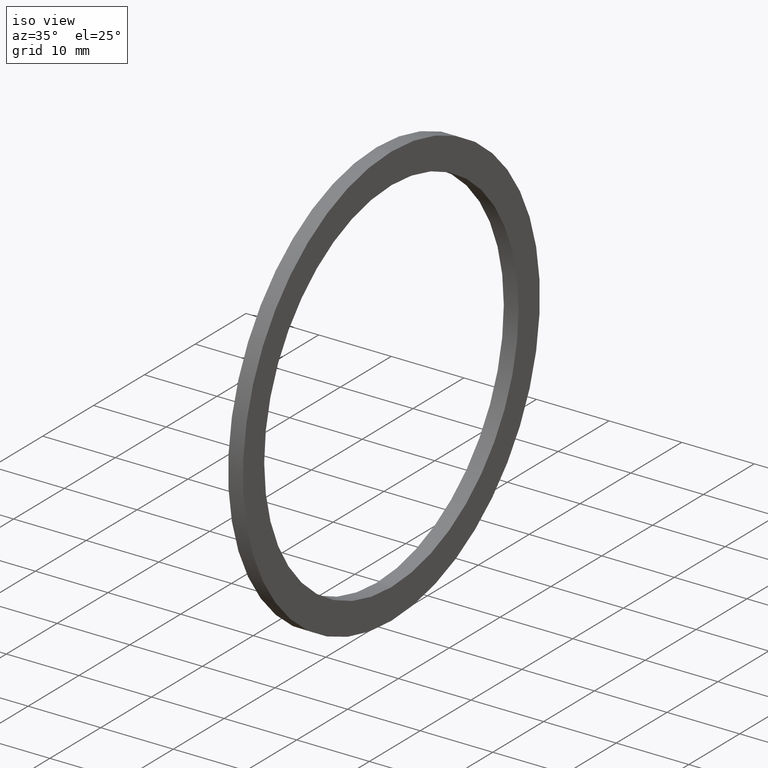
[diagram: clean part render]
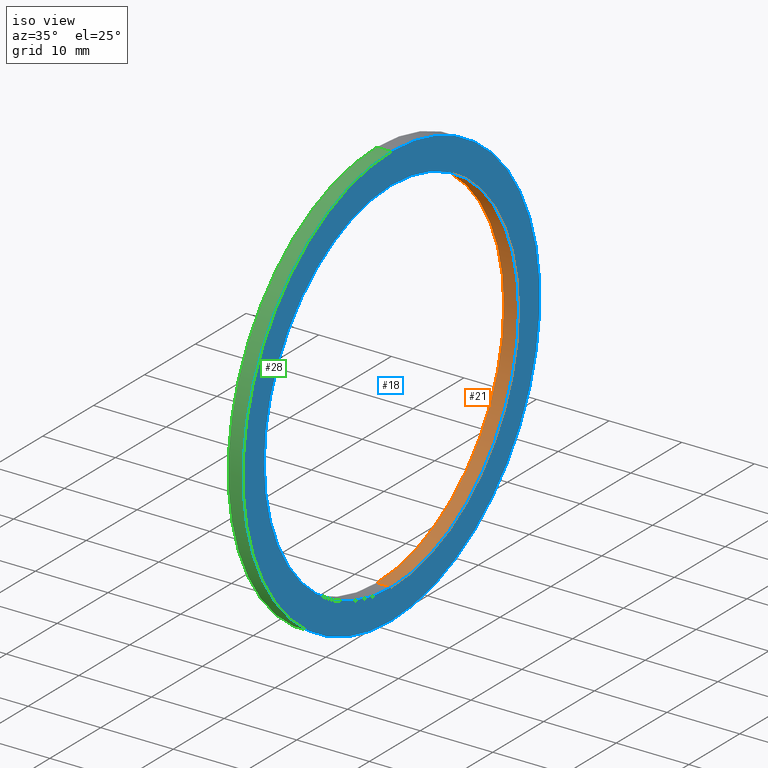
[diagram: same view with three faces highlighted in distinct colors, each labeled with its STEP entity id]
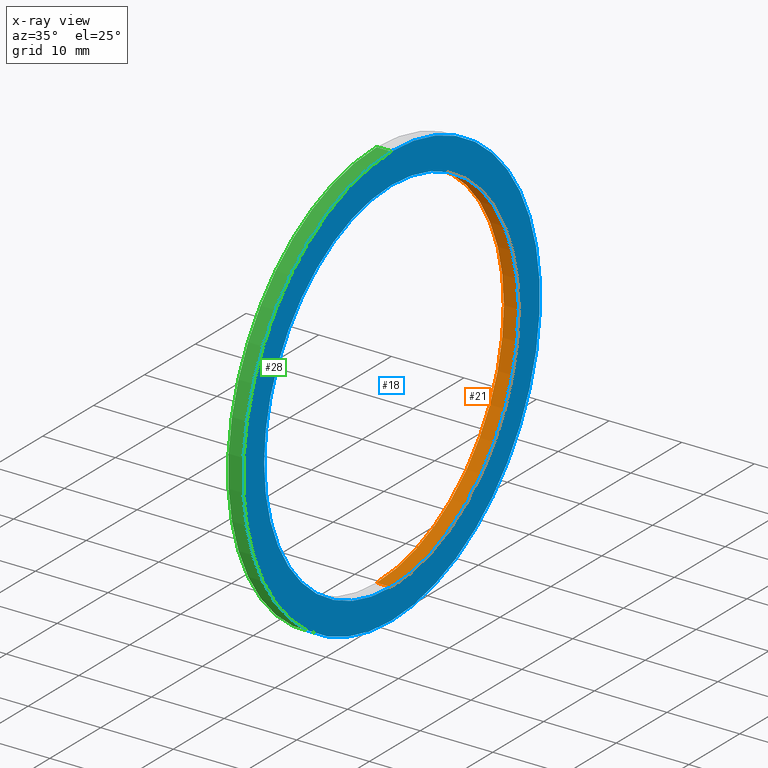
[diagram: x-ray of the same camera — body ghosted, the three highlighted faces saturated]
A machine part, iso view with three faces highlighted in distinct colors.
The next image is the same camera in x-ray (body ghosted, the three faces saturated) — at least one of them is partly hidden behind the body in this view.
Their STEP definitions:

[orange] entity #21 — the highlighted cylindrical surface (partial cylindrical patch) has radius 25.019 mm, axis along (-1, 0, 0).
#4 = VERTEX_POINT ( 'NONE', #60 ) ;
#5 = ORIENTED_EDGE ( 'NONE', *, *, #80, .T. ) ;
#6 = ORIENTED_EDGE ( 'NONE', *, *, #10, .T. ) ;
#10 = EDGE_CURVE ( 'NONE', #17, #47, #104, .T. ) ;
#13 = EDGE_CURVE ( 'NONE', #44, #4, #100, .T. ) ;
#17 = VERTEX_POINT ( 'NONE', #96 ) ;
#21 = ADVANCED_FACE ( 'NONE', ( #92 ), #86, .F. ) ;
#22 = EDGE_LOOP ( 'NONE', ( #32, #52, #5, #6 ) ) ;
#32 = ORIENTED_EDGE ( 'NONE', *, *, #46, .F. ) ;
#44 = VERTEX_POINT ( 'NONE', #144 ) ;
#46 = EDGE_CURVE ( 'NONE', #4, #47, #113, .T. ) ;
#47 = VERTEX_POINT ( 'NONE', #109 ) ;
#52 = ORIENTED_EDGE ( 'NONE', *, *, #13, .F. ) ;
#60 = CARTESIAN_POINT ( 'NONE',  ( 0.07999999999999996000, 1.206277097160143100E-016, -0.9849999999999999900 ) ) ;
#79 = CARTESIAN_POINT ( 'NONE',  ( 0.0000000000000000000, 0.0000000000000000000, 0.0000000000000000000 ) ) ;
#80 = EDGE_CURVE ( 'NONE', #44, #17, #218, .T. ) ;
#83 = DIRECTION ( 'NONE',  ( 0.0000000000000000000, 0.0000000000000000000, 1.000000000000000000 ) ) ;
#84 = DIRECTION ( 'NONE',  ( -1.000000000000000000, 0.0000000000000000000, 0.0000000000000000000 ) ) ;
#85 = AXIS2_PLACEMENT_3D ( 'NONE', #87, #84, #83 ) ;
#86 = CYLINDRICAL_SURFACE ( 'NONE', #85, 0.9849999999999999900 ) ;
#87 = CARTESIAN_POINT ( 'NONE',  ( -1.721125226614714300, 0.0000000000000000000, 0.0000000000000000000 ) ) ;
#92 = FACE_OUTER_BOUND ( 'NONE', #22, .T. ) ;
#96 = CARTESIAN_POINT ( 'NONE',  ( 0.0000000000000000000, 0.0000000000000000000, 0.9849999999999999900 ) ) ;
#97 = DIRECTION ( 'NONE',  ( 0.0000000000000000000, 0.0000000000000000000, 1.000000000000000000 ) ) ;
#98 = DIRECTION ( 'NONE',  ( -1.000000000000000000, 0.0000000000000000000, 0.0000000000000000000 ) ) ;
#99 = AXIS2_PLACEMENT_3D ( 'NONE', #105, #98, #97 ) ;
#100 = CIRCLE ( 'NONE', #99, 0.9849999999999999900 ) ;
#101 = DIRECTION ( 'NONE',  ( 0.0000000000000000000, 0.0000000000000000000, 1.000000000000000000 ) ) ;
#102 = DIRECTION ( 'NONE',  ( -1.000000000000000000, 0.0000000000000000000, 0.0000000000000000000 ) ) ;
#103 = AXIS2_PLACEMENT_3D ( 'NONE', #79, #102, #101 ) ;
#104 = CIRCLE ( 'NONE', #103, 0.9849999999999999900 ) ;
#105 = CARTESIAN_POINT ( 'NONE',  ( 0.07999999999999996000, 0.0000000000000000000, 0.0000000000000000000 ) ) ;
#109 = CARTESIAN_POINT ( 'NONE',  ( 0.0000000000000000000, 1.206277097160143100E-016, -0.9849999999999999900 ) ) ;
#110 = DIRECTION ( 'NONE',  ( -1.000000000000000000, 0.0000000000000000000, 0.0000000000000000000 ) ) ;
#111 = VECTOR ( 'NONE', #110, 39.37007874015748100 ) ;
#112 = CARTESIAN_POINT ( 'NONE',  ( -1.721125226614714300, 1.206277097160143100E-016, -0.9849999999999999900 ) ) ;
#113 = LINE ( 'NONE', #112, #111 ) ;
#144 = CARTESIAN_POINT ( 'NONE',  ( 0.07999999999999996000, 0.0000000000000000000, 0.9849999999999999900 ) ) ;
#211 = DIRECTION ( 'NONE',  ( -1.000000000000000000, 0.0000000000000000000, 0.0000000000000000000 ) ) ;
#212 = VECTOR ( 'NONE', #211, 39.37007874015748100 ) ;
#213 = CARTESIAN_POINT ( 'NONE',  ( -1.721125226614714300, 0.0000000000000000000, 0.9849999999999999900 ) ) ;
#218 = LINE ( 'NONE', #213, #212 ) ;

[blue] entity #18 — the highlighted planar face has unit normal (1, 0, 0).
#1 = EDGE_CURVE ( 'NONE', #37, #36, #59, .T. ) ;
#4 = VERTEX_POINT ( 'NONE', #60 ) ;
#13 = EDGE_CURVE ( 'NONE', #44, #4, #100, .T. ) ;
#14 = ORIENTED_EDGE ( 'NONE', *, *, #48, .T. ) ;
#15 = EDGE_LOOP ( 'NONE', ( #19, #20 ) ) ;
#18 = ADVANCED_FACE ( 'NONE', ( #95, #94 ), #93, .T. ) ;
#19 = ORIENTED_EDGE ( 'NONE', *, *, #35, .F. ) ;
#20 = ORIENTED_EDGE ( 'NONE', *, *, #1, .F. ) ;
#35 = EDGE_CURVE ( 'NONE', #36, #37, #190, .T. ) ;
#36 = VERTEX_POINT ( 'NONE', #227 ) ;
#37 = VERTEX_POINT ( 'NONE', #226 ) ;
#44 = VERTEX_POINT ( 'NONE', #144 ) ;
#48 = EDGE_CURVE ( 'NONE', #4, #44, #180, .T. ) ;
#49 = EDGE_LOOP ( 'NONE', ( #50, #14 ) ) ;
#50 = ORIENTED_EDGE ( 'NONE', *, *, #13, .T. ) ;
#57 = AXIS2_PLACEMENT_3D ( 'NONE', #62, #82, #81 ) ;
#59 = CIRCLE ( 'NONE', #57, 1.149999999999999900 ) ;
#60 = CARTESIAN_POINT ( 'NONE',  ( 0.07999999999999996000, 1.206277097160143100E-016, -0.9849999999999999900 ) ) ;
#62 = CARTESIAN_POINT ( 'NONE',  ( 0.07999999999999996000, 0.0000000000000000000, 0.0000000000000000000 ) ) ;
#81 = DIRECTION ( 'NONE',  ( 0.0000000000000000000, 0.0000000000000000000, 1.000000000000000000 ) ) ;
#82 = DIRECTION ( 'NONE',  ( -1.000000000000000000, 0.0000000000000000000, 0.0000000000000000000 ) ) ;
#88 = DIRECTION ( 'NONE',  ( 0.0000000000000000000, 0.0000000000000000000, -1.000000000000000000 ) ) ;
#89 = DIRECTION ( 'NONE',  ( 1.000000000000000000, 0.0000000000000000000, 0.0000000000000000000 ) ) ;
#90 = CARTESIAN_POINT ( 'NONE',  ( 0.08000000000000001600, -0.9849999999999999900, 0.0000000000000000000 ) ) ;
#91 = AXIS2_PLACEMENT_3D ( 'NONE', #90, #89, #88 ) ;
#93 = PLANE ( 'NONE',  #91 ) ;
#94 = FACE_OUTER_BOUND ( 'NONE', #15, .T. ) ;
#95 = FACE_BOUND ( 'NONE', #49, .T. ) ;
#97 = DIRECTION ( 'NONE',  ( 0.0000000000000000000, 0.0000000000000000000, 1.000000000000000000 ) ) ;
#98 = DIRECTION ( 'NONE',  ( -1.000000000000000000, 0.0000000000000000000, 0.0000000000000000000 ) ) ;
#99 = AXIS2_PLACEMENT_3D ( 'NONE', #105, #98, #97 ) ;
#100 = CIRCLE ( 'NONE', #99, 0.9849999999999999900 ) ;
#105 = CARTESIAN_POINT ( 'NONE',  ( 0.07999999999999996000, 0.0000000000000000000, 0.0000000000000000000 ) ) ;
#144 = CARTESIAN_POINT ( 'NONE',  ( 0.07999999999999996000, 0.0000000000000000000, 0.9849999999999999900 ) ) ;
#176 = DIRECTION ( 'NONE',  ( 0.0000000000000000000, 0.0000000000000000000, 1.000000000000000000 ) ) ;
#177 = DIRECTION ( 'NONE',  ( -1.000000000000000000, 0.0000000000000000000, 0.0000000000000000000 ) ) ;
#178 = CARTESIAN_POINT ( 'NONE',  ( 0.07999999999999996000, 0.0000000000000000000, 0.0000000000000000000 ) ) ;
#179 = AXIS2_PLACEMENT_3D ( 'NONE', #178, #177, #176 ) ;
#180 = CIRCLE ( 'NONE', #179, 0.9849999999999999900 ) ;
#189 = AXIS2_PLACEMENT_3D ( 'NONE', #230, #229, #228 ) ;
#190 = CIRCLE ( 'NONE', #189, 1.149999999999999900 ) ;
#226 = CARTESIAN_POINT ( 'NONE',  ( 0.07999999999999996000, 1.408343819019456000E-016, -1.149999999999999900 ) ) ;
#227 = CARTESIAN_POINT ( 'NONE',  ( 0.07999999999999996000, 0.0000000000000000000, 1.149999999999999900 ) ) ;
#228 = DIRECTION ( 'NONE',  ( 0.0000000000000000000, 0.0000000000000000000, 1.000000000000000000 ) ) ;
#229 = DIRECTION ( 'NONE',  ( -1.000000000000000000, 0.0000000000000000000, 0.0000000000000000000 ) ) ;
#230 = CARTESIAN_POINT ( 'NONE',  ( 0.07999999999999996000, 0.0000000000000000000, 0.0000000000000000000 ) ) ;

[green] entity #28 — the highlighted cylindrical surface (partial cylindrical patch) has radius 29.21 mm, axis along (-1, 0, 0).
#1 = EDGE_CURVE ( 'NONE', #37, #36, #59, .T. ) ;
#2 = ORIENTED_EDGE ( 'NONE', *, *, #24, .T. ) ;
#3 = ORIENTED_EDGE ( 'NONE', *, *, #8, .F. ) ;
#8 = EDGE_CURVE ( 'NONE', #40, #43, #78, .T. ) ;
#24 = EDGE_CURVE ( 'NONE', #36, #43, #76, .T. ) ;
#28 = ADVANCED_FACE ( 'NONE', ( #70 ), #64, .T. ) ;
#29 = EDGE_LOOP ( 'NONE', ( #30, #31, #2, #3 ) ) ;
#30 = ORIENTED_EDGE ( 'NONE', *, *, #39, .F. ) ;
#31 = ORIENTED_EDGE ( 'NONE', *, *, #1, .T. ) ;
#36 = VERTEX_POINT ( 'NONE', #227 ) ;
#37 = VERTEX_POINT ( 'NONE', #226 ) ;
#39 = EDGE_CURVE ( 'NONE', #37, #40, #225, .T. ) ;
#40 = VERTEX_POINT ( 'NONE', #206 ) ;
#43 = VERTEX_POINT ( 'NONE', #145 ) ;
#57 = AXIS2_PLACEMENT_3D ( 'NONE', #62, #82, #81 ) ;
#59 = CIRCLE ( 'NONE', #57, 1.149999999999999900 ) ;
#62 = CARTESIAN_POINT ( 'NONE',  ( 0.07999999999999996000, 0.0000000000000000000, 0.0000000000000000000 ) ) ;
#64 = CYLINDRICAL_SURFACE ( 'NONE', #65, 1.149999999999999900 ) ;
#65 = AXIS2_PLACEMENT_3D ( 'NONE', #143, #182, #205 ) ;
#70 = FACE_OUTER_BOUND ( 'NONE', #29, .T. ) ;
#73 = DIRECTION ( 'NONE',  ( -1.000000000000000000, 0.0000000000000000000, 0.0000000000000000000 ) ) ;
#74 = VECTOR ( 'NONE', #73, 39.37007874015748100 ) ;
#75 = CARTESIAN_POINT ( 'NONE',  ( -1.721125226614714300, 0.0000000000000000000, 1.149999999999999900 ) ) ;
#76 = LINE ( 'NONE', #75, #74 ) ;
#77 = AXIS2_PLACEMENT_3D ( 'NONE', #108, #107, #106 ) ;
#78 = CIRCLE ( 'NONE', #77, 1.149999999999999900 ) ;
#81 = DIRECTION ( 'NONE',  ( 0.0000000000000000000, 0.0000000000000000000, 1.000000000000000000 ) ) ;
#82 = DIRECTION ( 'NONE',  ( -1.000000000000000000, 0.0000000000000000000, 0.0000000000000000000 ) ) ;
#106 = DIRECTION ( 'NONE',  ( 0.0000000000000000000, 0.0000000000000000000, 1.000000000000000000 ) ) ;
#107 = DIRECTION ( 'NONE',  ( -1.000000000000000000, 0.0000000000000000000, 0.0000000000000000000 ) ) ;
#108 = CARTESIAN_POINT ( 'NONE',  ( 0.0000000000000000000, 0.0000000000000000000, 0.0000000000000000000 ) ) ;
#143 = CARTESIAN_POINT ( 'NONE',  ( -1.721125226614714300, 0.0000000000000000000, 0.0000000000000000000 ) ) ;
#145 = CARTESIAN_POINT ( 'NONE',  ( 0.0000000000000000000, 0.0000000000000000000, 1.149999999999999900 ) ) ;
#182 = DIRECTION ( 'NONE',  ( -1.000000000000000000, 0.0000000000000000000, 0.0000000000000000000 ) ) ;
#205 = DIRECTION ( 'NONE',  ( 0.0000000000000000000, 0.0000000000000000000, 1.000000000000000000 ) ) ;
#206 = CARTESIAN_POINT ( 'NONE',  ( 0.0000000000000000000, 1.408343819019456000E-016, -1.149999999999999900 ) ) ;
#207 = DIRECTION ( 'NONE',  ( -1.000000000000000000, 0.0000000000000000000, 0.0000000000000000000 ) ) ;
#208 = VECTOR ( 'NONE', #207, 39.37007874015748100 ) ;
#209 = CARTESIAN_POINT ( 'NONE',  ( -1.721125226614714300, 1.408343819019456000E-016, -1.149999999999999900 ) ) ;
#225 = LINE ( 'NONE', #209, #208 ) ;
#226 = CARTESIAN_POINT ( 'NONE',  ( 0.07999999999999996000, 1.408343819019456000E-016, -1.149999999999999900 ) ) ;
#227 = CARTESIAN_POINT ( 'NONE',  ( 0.07999999999999996000, 0.0000000000000000000, 1.149999999999999900 ) ) ;